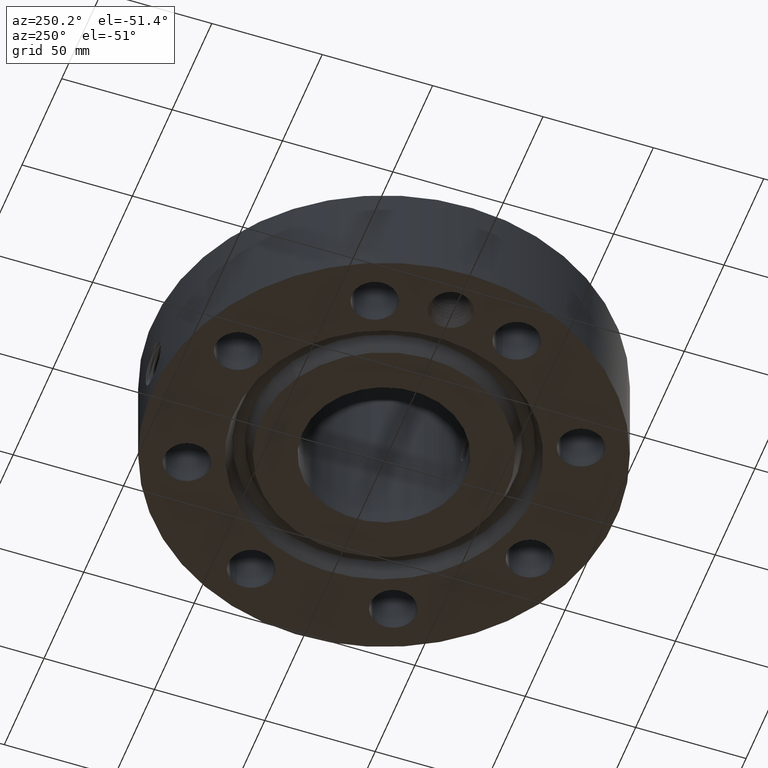
[diagram: clean part render]
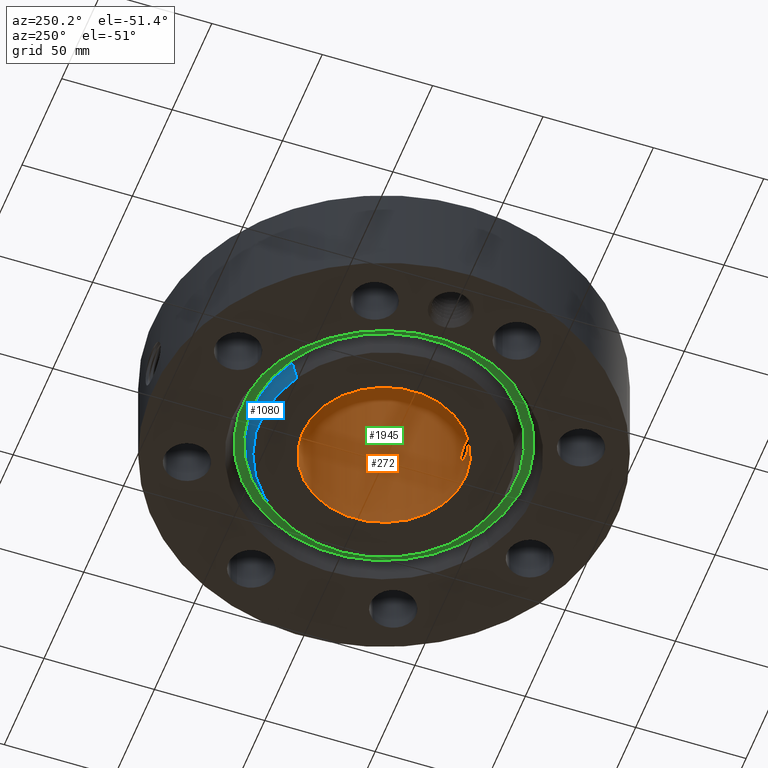
[diagram: same view with three faces highlighted in distinct colors, each labeled with its STEP entity id]
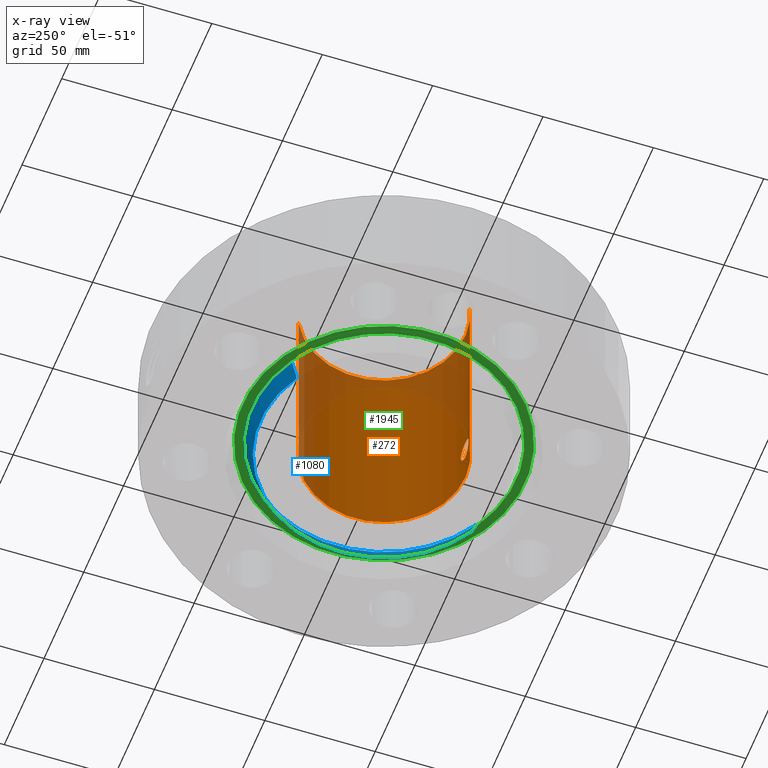
[diagram: x-ray of the same camera — body ghosted, the three highlighted faces saturated]
A machine part, auxiliary view with three faces highlighted in distinct colors.
The next image is the same camera in x-ray (body ghosted, the three faces saturated) — at least one of them is partly hidden behind the body in this view.
Their STEP definitions:

[orange] entity #272 — the highlighted cylindrical surface (partial cylindrical patch) has radius 36.83 mm, axis along (0, 0, -1).
#232=AXIS2_PLACEMENT_3D('Cylinder Axis2P3D',#229,#230,#231) ;
#236=AXIS2_PLACEMENT_3D('Circle Axis2P3D',#234,#235,$) ;
#252=AXIS2_PLACEMENT_3D('Circle Axis2P3D',#250,#251,$) ;
#81=CARTESIAN_POINT('Control Point',(0.16674068676,-1.44038104104,0.658909147668)) ;
#82=CARTESIAN_POINT('Control Point',(0.155853923545,-1.44164130921,0.638981061273)) ;
#83=CARTESIAN_POINT('Control Point',(0.141996394728,-1.44314123905,0.620691068061)) ;
#84=CARTESIAN_POINT('Control Point',(0.125490527962,-1.44473002396,0.604617598636)) ;
#85=CARTESIAN_POINT('Control Point',(0.078932422326,-1.44840024366,0.571252337646)) ;
#86=CARTESIAN_POINT('Control Point',(0.0226598024439,-1.45044586691,0.556661650099)) ;
#87=CARTESIAN_POINT('Control Point',(-0.0125762470496,-1.45058029713,0.55574237355)) ;
#88=CARTESIAN_POINT('Control Point',(-0.0866432712634,-1.44840984346,0.570889564216)) ;
#89=CARTESIAN_POINT('Control Point',(-0.145947054032,-1.4431150318,0.618592110825)) ;
#90=CARTESIAN_POINT('Control Point',(-0.170365609853,-1.44006401665,0.65225545203)) ;
#91=CARTESIAN_POINT('Control Point',(-0.193202939362,-1.43708588353,0.71291948346)) ;
#92=CARTESIAN_POINT('Control Point',(-0.190291479714,-1.4374548603,0.776316921369)) ;
#93=CARTESIAN_POINT('Control Point',(-0.185696733654,-1.43808039828,0.799178061498)) ;
#94=CARTESIAN_POINT('Control Point',(-0.177733048215,-1.43910854866,0.820969469662)) ;
#95=CARTESIAN_POINT('Control Point',(-0.16674068676,-1.44038104104,0.841090852338)) ;
#96=CARTESIAN_POINT('Vertex',(0.16674068676,-1.44038104104,0.658909147668)) ;
#98=CARTESIAN_POINT('Vertex',(-0.16674068676,-1.44038104104,0.841090852338)) ;
#206=CARTESIAN_POINT('Control Point',(-0.16674068676,-1.44038104104,0.841090852338)) ;
#207=CARTESIAN_POINT('Control Point',(-0.155853923541,-1.44164130921,0.861018938739)) ;
#208=CARTESIAN_POINT('Control Point',(-0.14199639472,-1.44314123905,0.879308931956)) ;
#209=CARTESIAN_POINT('Control Point',(-0.125490527971,-1.44473002396,0.895382401364)) ;
#210=CARTESIAN_POINT('Control Point',(-0.0789324223289,-1.44840024366,0.92874766236)) ;
#211=CARTESIAN_POINT('Control Point',(-0.0226598024391,-1.45044586691,0.943338349908)) ;
#212=CARTESIAN_POINT('Control Point',(0.0125762470503,-1.45058029713,0.944257626456)) ;
#213=CARTESIAN_POINT('Control Point',(0.0866432712647,-1.44840984346,0.929110435789)) ;
#214=CARTESIAN_POINT('Control Point',(0.145947054033,-1.4431150318,0.88140788918)) ;
#215=CARTESIAN_POINT('Control Point',(0.170365609855,-1.44006401665,0.847744547973)) ;
#216=CARTESIAN_POINT('Control Point',(0.193202939363,-1.43708588353,0.787080516542)) ;
#217=CARTESIAN_POINT('Control Point',(0.190291479714,-1.4374548603,0.723683078632)) ;
#218=CARTESIAN_POINT('Control Point',(0.185696733655,-1.43808039828,0.70082193851)) ;
#219=CARTESIAN_POINT('Control Point',(0.177733048215,-1.43910854866,0.679030530345)) ;
#220=CARTESIAN_POINT('Control Point',(0.16674068676,-1.44038104104,0.658909147668)) ;
#229=CARTESIAN_POINT('Axis2P3D Location',(0.,0.,1.90650000001)) ;
#234=CARTESIAN_POINT('Axis2P3D Location',(0.,0.,3.81300000002)) ;
#238=CARTESIAN_POINT('Vertex',(0.695167030979,1.27249471475,3.81300000002)) ;
#240=CARTESIAN_POINT('Vertex',(-0.695167030979,-1.27249471475,3.81300000002)) ;
#243=CARTESIAN_POINT('Line Origine',(0.695167030979,1.27249471475,1.90650000001)) ;
#247=CARTESIAN_POINT('Vertex',(0.695167030979,1.27249471475,-1.39870617276E-015)) ;
#250=CARTESIAN_POINT('Axis2P3D Location',(0.,0.,-2.23792987641E-015)) ;
#254=CARTESIAN_POINT('Vertex',(-0.695167030979,-1.27249471475,-1.39870617276E-015)) ;
#257=CARTESIAN_POINT('Line Origine',(-0.695167030979,-1.27249471475,1.90650000001)) ;
#230=DIRECTION('Axis2P3D Direction',(0.,0.,-0.0393700787402)) ;
#231=DIRECTION('Axis2P3D XDirection',(-0.0188750212049,-0.0345504945626,0.)) ;
#235=DIRECTION('Axis2P3D Direction',(0.,0.,-0.0393700787402)) ;
#244=DIRECTION('Vector Direction',(0.,0.,-0.0393700787402)) ;
#251=DIRECTION('Axis2P3D Direction',(0.,0.,-0.0393700787402)) ;
#258=DIRECTION('Vector Direction',(0.,0.,-0.0393700787402)) ;
#245=VECTOR('Line Direction',#244,0.0393700787402) ;
#259=VECTOR('Line Direction',#258,0.0393700787402) ;
#263=ORIENTED_EDGE('',*,*,#242,.F.) ;
#264=ORIENTED_EDGE('',*,*,#249,.T.) ;
#265=ORIENTED_EDGE('',*,*,#256,.T.) ;
#266=ORIENTED_EDGE('',*,*,#261,.F.) ;
#269=ORIENTED_EDGE('',*,*,#100,.F.) ;
#270=ORIENTED_EDGE('',*,*,#221,.F.) ;
#271=FACE_BOUND('',#268,.T.) ;
#272=ADVANCED_FACE('PartBody',(#267,#271),#233,.F.) ;
#80=B_SPLINE_CURVE_WITH_KNOTS('',5,(#81,#82,#83,#84,#85,#86,#87,#88,#89,#90,#91,#92,#93,#94,#95),.UNSPECIFIED.,.F.,.U.,(6,3,3,3,6),(0.,4.08473745372,10.1952038069,17.3395947637,21.4639529088),.UNSPECIFIED.) ;
#205=B_SPLINE_CURVE_WITH_KNOTS('',5,(#206,#207,#208,#209,#210,#211,#212,#213,#214,#215,#216,#217,#218,#219,#220),.UNSPECIFIED.,.F.,.U.,(6,3,3,3,6),(0.,4.08473745492,10.1952038083,17.3395947651,21.4639529103),.UNSPECIFIED.) ;
#237=CIRCLE('generated circle',#236,1.45000000001) ;
#253=CIRCLE('generated circle',#252,1.45000000001) ;
#233=CYLINDRICAL_SURFACE('generated cylinder',#232,1.45000000001) ;
#100=EDGE_CURVE('',#97,#99,#80,.T.) ;
#221=EDGE_CURVE('',#99,#97,#205,.T.) ;
#242=EDGE_CURVE('',#239,#241,#237,.T.) ;
#249=EDGE_CURVE('',#239,#248,#246,.T.) ;
#256=EDGE_CURVE('',#248,#255,#253,.T.) ;
#261=EDGE_CURVE('',#241,#255,#260,.T.) ;
#262=EDGE_LOOP('',(#263,#264,#265,#266)) ;
#268=EDGE_LOOP('',(#269,#270)) ;
#267=FACE_OUTER_BOUND('',#262,.T.) ;
#246=LINE('Line',#243,#245) ;
#260=LINE('Line',#257,#259) ;
#97=VERTEX_POINT('',#96) ;
#99=VERTEX_POINT('',#98) ;
#239=VERTEX_POINT('',#238) ;
#241=VERTEX_POINT('',#240) ;
#248=VERTEX_POINT('',#247) ;
#255=VERTEX_POINT('',#254) ;

[blue] entity #1080 — the highlighted conical surface has half-angle 23 deg.
#602=AXIS2_PLACEMENT_3D('Circle Axis2P3D',#600,#601,$) ;
#1053=AXIS2_PLACEMENT_3D('Cone Axis2P3D',#1050,#1051,#1052) ;
#1064=AXIS2_PLACEMENT_3D('Circle Axis2P3D',#1062,#1063,$) ;
#600=CARTESIAN_POINT('Axis2P3D Location',(5.59482469102E-016,0.,0.)) ;
#604=CARTESIAN_POINT('Vertex',(-1.05617446155,1.93331438385,-8.74191357973E-018)) ;
#606=CARTESIAN_POINT('Vertex',(1.05617446155,-1.93331438385,0.)) ;
#1050=CARTESIAN_POINT('Axis2P3D Location',(0.,0.,-0.0600000000002)) ;
#1055=CARTESIAN_POINT('Line Origine',(-1.08610102335,1.98809458777,0.147056332492)) ;
#1059=CARTESIAN_POINT('Vertex',(-1.11602758514,2.0428747917,0.294112664984)) ;
#1062=CARTESIAN_POINT('Axis2P3D Location',(0.,0.,0.294112664984)) ;
#1066=CARTESIAN_POINT('Vertex',(1.11602758514,-2.0428747917,0.294112664984)) ;
#1069=CARTESIAN_POINT('Line Origine',(1.08610102335,-1.98809458777,0.147056332492)) ;
#601=DIRECTION('Axis2P3D Direction',(0.,0.,-0.0393700787402)) ;
#1051=DIRECTION('Axis2P3D Direction',(0.,0.,0.0393700787402)) ;
#1052=DIRECTION('Axis2P3D XDirection',(-0.0188750212049,0.0345504945626,0.)) ;
#1056=DIRECTION('Vector Direction',(-0.00737505833565,0.0134999537303,0.0362403485611)) ;
#1063=DIRECTION('Axis2P3D Direction',(0.,0.,0.0393700787402)) ;
#1070=DIRECTION('Vector Direction',(0.00737505833565,-0.0134999537303,0.0362403485611)) ;
#1057=VECTOR('Line Direction',#1056,0.0393700787402) ;
#1071=VECTOR('Line Direction',#1070,0.0393700787402) ;
#1075=ORIENTED_EDGE('',*,*,#1061,.F.) ;
#1076=ORIENTED_EDGE('',*,*,#1068,.F.) ;
#1077=ORIENTED_EDGE('',*,*,#1073,.T.) ;
#1078=ORIENTED_EDGE('',*,*,#608,.F.) ;
#1080=ADVANCED_FACE('PartBody',(#1079),#1054,.T.) ;
#603=CIRCLE('generated circle',#602,2.20300000001) ;
#1065=CIRCLE('generated circle',#1064,2.32784341942) ;
#1054=CONICAL_SURFACE('Cone',#1053,2.17753151104,0.401425727959) ;
#608=EDGE_CURVE('',#605,#607,#603,.T.) ;
#1061=EDGE_CURVE('',#1060,#605,#1058,.F.) ;
#1068=EDGE_CURVE('',#1067,#1060,#1065,.T.) ;
#1073=EDGE_CURVE('',#1067,#607,#1072,.F.) ;
#1074=EDGE_LOOP('',(#1075,#1076,#1077,#1078)) ;
#1079=FACE_OUTER_BOUND('',#1074,.T.) ;
#1058=LINE('Line',#1055,#1057) ;
#1072=LINE('Line',#1069,#1071) ;
#605=VERTEX_POINT('',#604) ;
#607=VERTEX_POINT('',#606) ;
#1060=VERTEX_POINT('',#1059) ;
#1067=VERTEX_POINT('',#1066) ;

[green] entity #1945 — the highlighted planar face has unit normal (0, 0, 1).
#1425=AXIS2_PLACEMENT_3D('Circle Axis2P3D',#1423,#1424,$) ;
#1451=AXIS2_PLACEMENT_3D('Circle Axis2P3D',#1449,#1450,$) ;
#1921=AXIS2_PLACEMENT_3D('Plane Axis2P3D',#1918,#1919,#1920) ;
#1925=AXIS2_PLACEMENT_3D('Circle Axis2P3D',#1923,#1924,$) ;
#1934=AXIS2_PLACEMENT_3D('Circle Axis2P3D',#1932,#1933,$) ;
#1423=CARTESIAN_POINT('Axis2P3D Location',(0.,0.,0.313000000001)) ;
#1427=CARTESIAN_POINT('Vertex',(1.12970830473,-2.06791718093,0.313000000001)) ;
#1429=CARTESIAN_POINT('Vertex',(-1.12970830473,2.06791718093,0.313000000001)) ;
#1449=CARTESIAN_POINT('Axis2P3D Location',(0.,0.,0.313000000001)) ;
#1918=CARTESIAN_POINT('Axis2P3D Location',(0.,2.35637906988,0.313000000001)) ;
#1923=CARTESIAN_POINT('Axis2P3D Location',(0.,0.,0.313000000001)) ;
#1927=CARTESIAN_POINT('Vertex',(-1.20749119597,2.2102978083,0.313000000001)) ;
#1929=CARTESIAN_POINT('Vertex',(1.20749119597,-2.2102978083,0.313000000001)) ;
#1932=CARTESIAN_POINT('Axis2P3D Location',(0.,0.,0.313000000001)) ;
#1424=DIRECTION('Axis2P3D Direction',(0.,0.,0.0393700787402)) ;
#1450=DIRECTION('Axis2P3D Direction',(0.,0.,0.0393700787402)) ;
#1919=DIRECTION('Axis2P3D Direction',(0.,0.,0.0393700787402)) ;
#1920=DIRECTION('Axis2P3D XDirection',(0.0393700787402,0.,0.)) ;
#1924=DIRECTION('Axis2P3D Direction',(0.,0.,0.0393700787402)) ;
#1933=DIRECTION('Axis2P3D Direction',(0.,0.,0.0393700787402)) ;
#1938=ORIENTED_EDGE('',*,*,#1931,.F.) ;
#1939=ORIENTED_EDGE('',*,*,#1936,.F.) ;
#1942=ORIENTED_EDGE('',*,*,#1431,.T.) ;
#1943=ORIENTED_EDGE('',*,*,#1453,.T.) ;
#1944=FACE_BOUND('',#1941,.T.) ;
#1945=ADVANCED_FACE('PartBody',(#1940,#1944),#1922,.F.) ;
#1426=CIRCLE('generated circle',#1425,2.35637906988) ;
#1452=CIRCLE('generated circle',#1451,2.35637906988) ;
#1926=CIRCLE('generated circle',#1925,2.51862093014) ;
#1935=CIRCLE('generated circle',#1934,2.51862093014) ;
#1431=EDGE_CURVE('',#1428,#1430,#1426,.T.) ;
#1453=EDGE_CURVE('',#1430,#1428,#1452,.T.) ;
#1931=EDGE_CURVE('',#1928,#1930,#1926,.T.) ;
#1936=EDGE_CURVE('',#1930,#1928,#1935,.T.) ;
#1937=EDGE_LOOP('',(#1938,#1939)) ;
#1941=EDGE_LOOP('',(#1942,#1943)) ;
#1940=FACE_OUTER_BOUND('',#1937,.T.) ;
#1922=PLANE('',#1921) ;
#1428=VERTEX_POINT('',#1427) ;
#1430=VERTEX_POINT('',#1429) ;
#1928=VERTEX_POINT('',#1927) ;
#1930=VERTEX_POINT('',#1929) ;